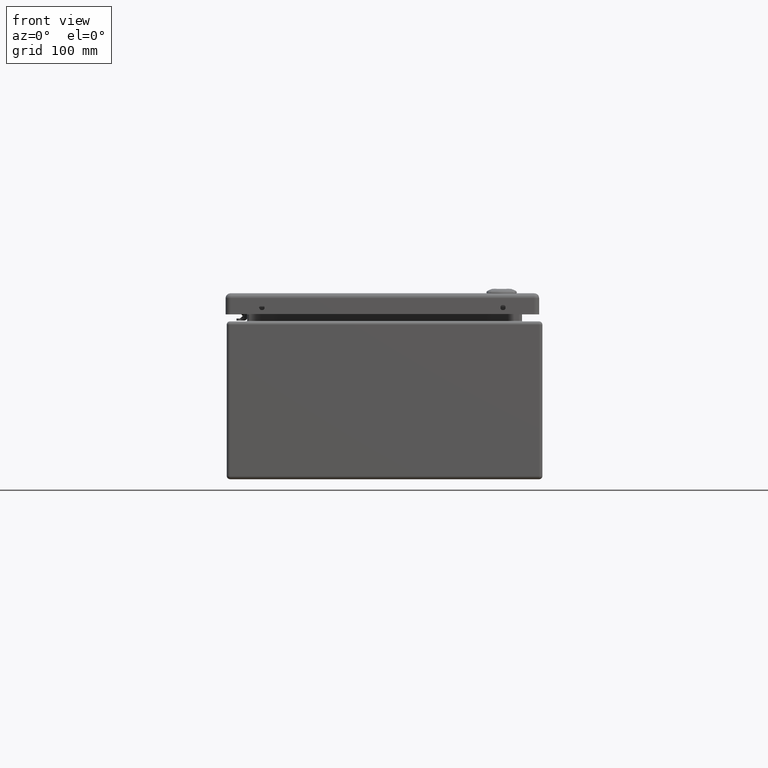
[diagram: clean part render]
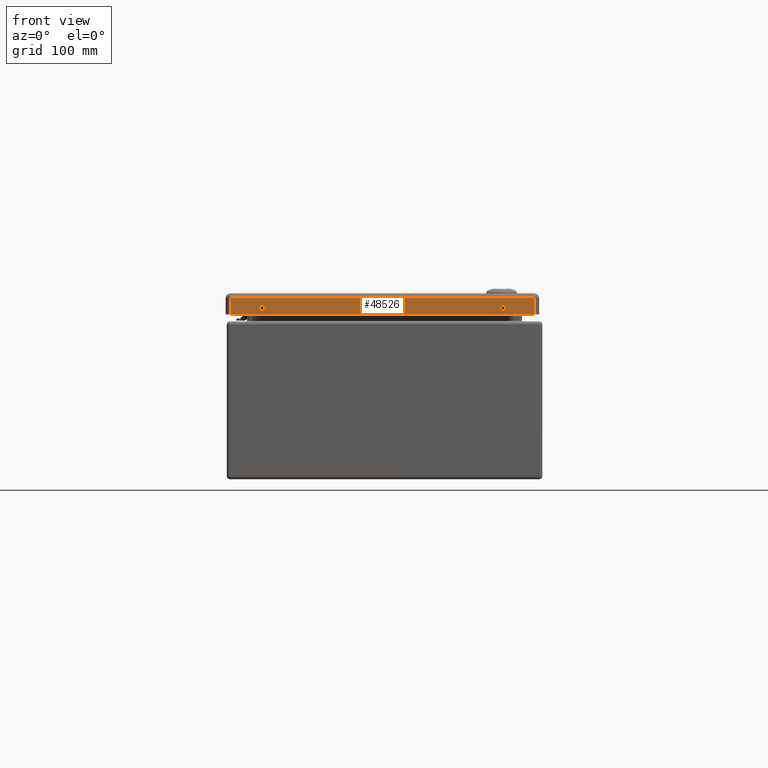
[diagram: same view with one face highlighted and labeled with its STEP entity id]
A machine part, front view. The second image highlights one B-rep face of the part: STEP entity #48526.
In plain terms, the highlighted planar face has unit normal (-0, -1, 0).
Its self-contained STEP definition (entity closure, byte-faithful):
#3046=FACE_BOUND('',#15525,.T.);
#3047=FACE_BOUND('',#15526,.T.);
#4386=LINE('',#73139,#8211);
#4417=LINE('',#73293,#8242);
#4422=LINE('',#73306,#8247);
#4423=LINE('',#73308,#8248);
#8211=VECTOR('',#57515,0.393700787401575);
#8242=VECTOR('',#57636,0.393700787401575);
#8247=VECTOR('',#57657,0.393700787401575);
#8248=VECTOR('',#57660,0.393700787401575);
#12594=FACE_OUTER_BOUND('',#15524,.T.);
#15524=EDGE_LOOP('',(#33419,#33420,#33421,#33422));
#15525=EDGE_LOOP('',(#33423));
#15526=EDGE_LOOP('',(#33424));
#18537=CIRCLE('',#52380,0.1015);
#18541=CIRCLE('',#52386,0.1015);
#20388=VERTEX_POINT('',#72892);
#20392=VERTEX_POINT('',#72904);
#20463=VERTEX_POINT('',#73136);
#20464=VERTEX_POINT('',#73138);
#20493=VERTEX_POINT('',#73290);
#20494=VERTEX_POINT('',#73292);
#25283=EDGE_CURVE('',#20388,#20388,#18537,.T.);
#25289=EDGE_CURVE('',#20392,#20392,#18541,.T.);
#25383=EDGE_CURVE('',#20463,#20464,#4386,.T.);
#25438=EDGE_CURVE('',#20493,#20494,#4417,.T.);
#25446=EDGE_CURVE('',#20494,#20463,#4422,.T.);
#25447=EDGE_CURVE('',#20493,#20464,#4423,.T.);
#33419=ORIENTED_EDGE('',*,*,#25438,.F.);
#33420=ORIENTED_EDGE('',*,*,#25447,.T.);
#33421=ORIENTED_EDGE('',*,*,#25383,.F.);
#33422=ORIENTED_EDGE('',*,*,#25446,.F.);
#33423=ORIENTED_EDGE('',*,*,#25283,.T.);
#33424=ORIENTED_EDGE('',*,*,#25289,.T.);
#46982=PLANE('',#52494);
#48526=ADVANCED_FACE('',(#12594,#3046,#3047),#46982,.T.);
#52380=AXIS2_PLACEMENT_3D('',#72894,#57333,#57334);
#52386=AXIS2_PLACEMENT_3D('',#72906,#57347,#57348);
#52494=AXIS2_PLACEMENT_3D('',#73307,#57658,#57659);
#57333=DIRECTION('center_axis',(1.33809638996484E-16,1.,0.));
#57334=DIRECTION('ref_axis',(-1.,1.37110773281977E-16,0.));
#57347=DIRECTION('center_axis',(1.33809638996484E-16,1.,0.));
#57348=DIRECTION('ref_axis',(-1.,1.37110773281977E-16,0.));
#57515=DIRECTION('',(-1.,-2.95734656760228E-31,0.));
#57636=DIRECTION('',(1.,-1.33809638996484E-16,0.));
#57657=DIRECTION('',(0.,0.,-1.));
#57658=DIRECTION('center_axis',(-1.33809638996484E-16,-1.,0.));
#57659=DIRECTION('ref_axis',(1.,-1.33809638996484E-16,0.));
#57660=DIRECTION('',(0.,0.,-1.));
#72892=CARTESIAN_POINT('',(-4.4825,-11.9015,-0.46));
#72894=CARTESIAN_POINT('Origin',(-4.584,-11.9015,-0.46));
#72904=CARTESIAN_POINT('',(4.6855,-11.9015,-0.46));
#72906=CARTESIAN_POINT('Origin',(4.584,-11.9015,-0.46));
#73136=CARTESIAN_POINT('',(5.77599999999999,-11.9015,-0.71));
#73138=CARTESIAN_POINT('',(-5.77599999999999,-11.9015,-0.71));
#73139=CARTESIAN_POINT('',(-5.77599999999999,-11.9015,-0.71));
#73290=CARTESIAN_POINT('',(-5.77599999999999,-11.9015,-0.093));
#73292=CARTESIAN_POINT('',(5.77599999999999,-11.9015,-0.093));
#73293=CARTESIAN_POINT('',(-2.888,-11.9015,-0.093));
#73306=CARTESIAN_POINT('',(5.77599999999999,-11.9015,0.));
#73307=CARTESIAN_POINT('Origin',(-5.776,-11.9015,0.));
#73308=CARTESIAN_POINT('',(-5.77599999999999,-11.9015,0.));